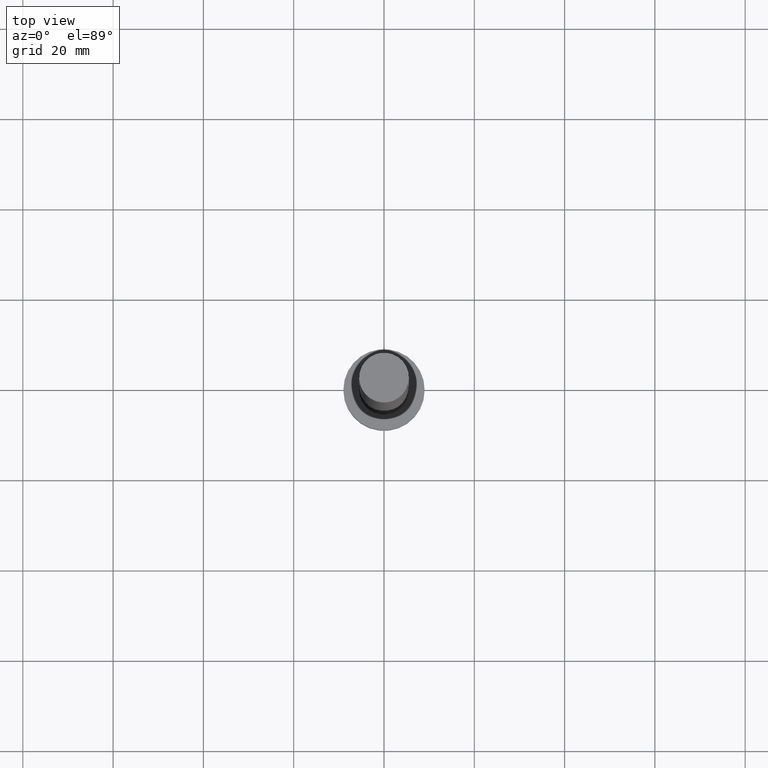
[diagram: clean part render]
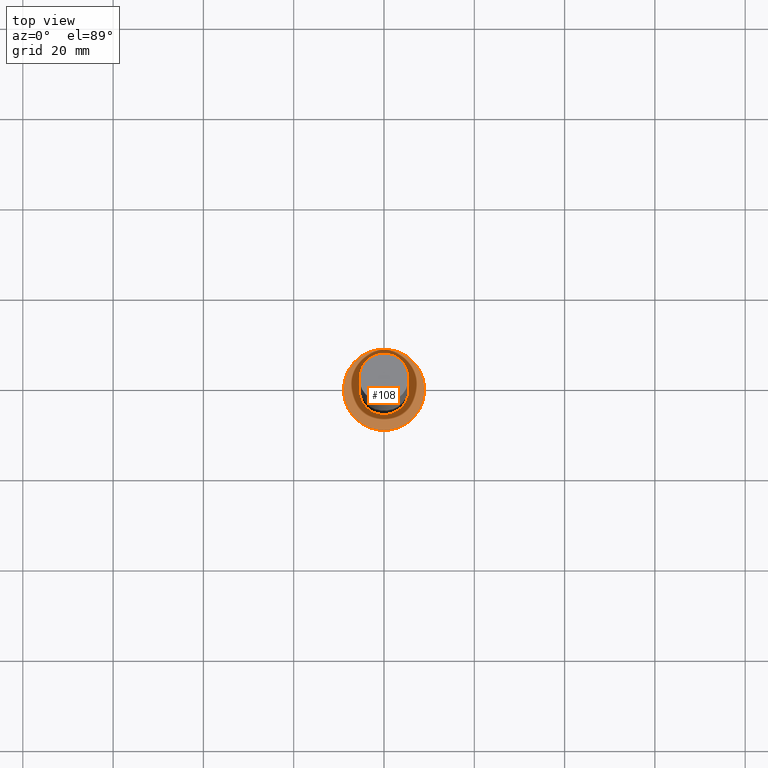
[diagram: same view with one face highlighted and labeled with its STEP entity id]
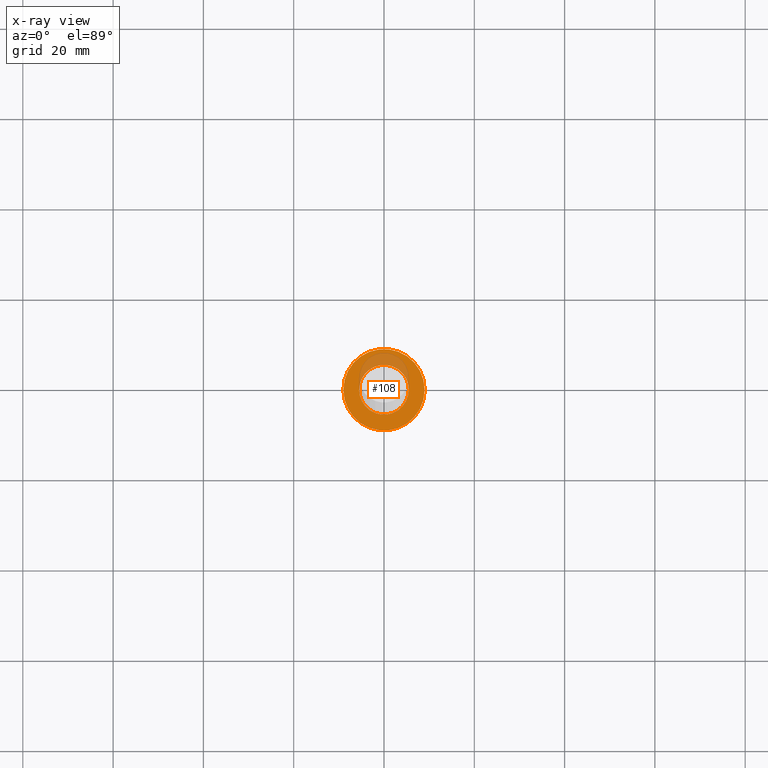
[diagram: x-ray of the same camera — body ghosted, the highlighted face saturated]
A machine part, top view. The second image highlights one B-rep face of the part: STEP entity #108.
The next image is the same camera in x-ray: the body ghosted, the highlighted face saturated — about 19% of this face is hidden behind the body in this view.
In plain terms, the highlighted planar face has unit normal (0, 0, 1).
Its self-contained STEP definition (entity closure, byte-faithful):
#2 = VERTEX_POINT ( 'NONE', #216 ) ;
#3 = DIRECTION ( 'NONE',  ( 0.000000000000000000, 0.000000000000000000, 1.000000000000000000 ) ) ;
#4 = ORIENTED_EDGE ( 'NONE', *, *, #190, .T. ) ;
#6 = AXIS2_PLACEMENT_3D ( 'NONE', #16, #3, #22 ) ;
#15 = DIRECTION ( 'NONE',  ( 0.000000000000000000, 0.000000000000000000, 1.000000000000000000 ) ) ;
#16 = CARTESIAN_POINT ( 'NONE',  ( 0.000000000000000000, 0.000000000000000000, 6.500000000000000000 ) ) ;
#18 = PLANE ( 'NONE',  #162 ) ;
#22 = DIRECTION ( 'NONE',  ( 1.000000000000000000, 0.000000000000000000, 0.000000000000000000 ) ) ;
#35 = FACE_BOUND ( 'NONE', #60, .T. ) ;
#36 = DIRECTION ( 'NONE',  ( 1.000000000000000000, 0.000000000000000000, -0.000000000000000000 ) ) ;
#38 = CIRCLE ( 'NONE', #117, 5.500000000000000000 ) ;
#41 = DIRECTION ( 'NONE',  ( 1.000000000000000000, 0.000000000000000000, 0.000000000000000000 ) ) ;
#44 = DIRECTION ( 'NONE',  ( 1.000000000000000000, 0.000000000000000000, 0.000000000000000000 ) ) ;
#56 = FACE_OUTER_BOUND ( 'NONE', #90, .T. ) ;
#58 = CARTESIAN_POINT ( 'NONE',  ( 0.000000000000000000, 0.000000000000000000, 6.500000000000000000 ) ) ;
#60 = EDGE_LOOP ( 'NONE', ( #163, #68 ) ) ;
#62 = CARTESIAN_POINT ( 'NONE',  ( 0.000000000000000000, 0.000000000000000000, 6.500000000000000000 ) ) ;
#67 = CIRCLE ( 'NONE', #219, 9.000000000000000000 ) ;
#68 = ORIENTED_EDGE ( 'NONE', *, *, #165, .F. ) ;
#81 = EDGE_CURVE ( 'NONE', #122, #197, #99, .T. ) ;
#82 = DIRECTION ( 'NONE',  ( 0.000000000000000000, 0.000000000000000000, 1.000000000000000000 ) ) ;
#84 = CIRCLE ( 'NONE', #6, 9.000000000000000000 ) ;
#90 = EDGE_LOOP ( 'NONE', ( #4, #225 ) ) ;
#99 = CIRCLE ( 'NONE', #183, 5.500000000000000000 ) ;
#108 = ADVANCED_FACE ( 'NONE', ( #35, #56 ), #18, .T. ) ;
#117 = AXIS2_PLACEMENT_3D ( 'NONE', #121, #82, #41 ) ;
#121 = CARTESIAN_POINT ( 'NONE',  ( 0.000000000000000000, 0.000000000000000000, 6.500000000000000000 ) ) ;
#122 = VERTEX_POINT ( 'NONE', #249 ) ;
#162 = AXIS2_PLACEMENT_3D ( 'NONE', #58, #15, #36 ) ;
#163 = ORIENTED_EDGE ( 'NONE', *, *, #81, .F. ) ;
#165 = EDGE_CURVE ( 'NONE', #197, #122, #38, .T. ) ;
#167 = VERTEX_POINT ( 'NONE', #191 ) ;
#179 = CARTESIAN_POINT ( 'NONE',  ( 0.000000000000000000, 0.000000000000000000, 6.500000000000000000 ) ) ;
#183 = AXIS2_PLACEMENT_3D ( 'NONE', #62, #193, #207 ) ;
#190 = EDGE_CURVE ( 'NONE', #2, #167, #84, .T. ) ;
#191 = CARTESIAN_POINT ( 'NONE',  ( 9.000000000000000000, 1.102182119232617517E-15, 6.500000000000000000 ) ) ;
#193 = DIRECTION ( 'NONE',  ( 0.000000000000000000, 0.000000000000000000, 1.000000000000000000 ) ) ;
#197 = VERTEX_POINT ( 'NONE', #208 ) ;
#207 = DIRECTION ( 'NONE',  ( 1.000000000000000000, 0.000000000000000000, 0.000000000000000000 ) ) ;
#208 = CARTESIAN_POINT ( 'NONE',  ( 5.500000000000000000, 6.735557395310442023E-16, 6.500000000000000000 ) ) ;
#215 = EDGE_CURVE ( 'NONE', #167, #2, #67, .T. ) ;
#216 = CARTESIAN_POINT ( 'NONE',  ( -9.000000000000000000, 0.000000000000000000, 6.500000000000000000 ) ) ;
#219 = AXIS2_PLACEMENT_3D ( 'NONE', #179, #234, #44 ) ;
#225 = ORIENTED_EDGE ( 'NONE', *, *, #215, .T. ) ;
#234 = DIRECTION ( 'NONE',  ( 0.000000000000000000, 0.000000000000000000, 1.000000000000000000 ) ) ;
#249 = CARTESIAN_POINT ( 'NONE',  ( -5.500000000000000000, 0.000000000000000000, 6.500000000000000000 ) ) ;